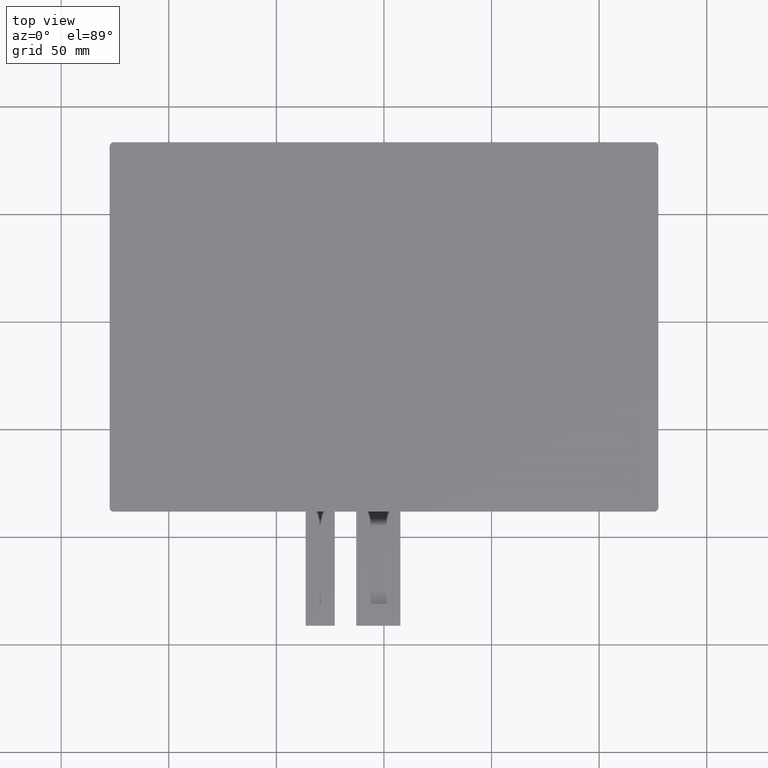
[diagram: clean part render]
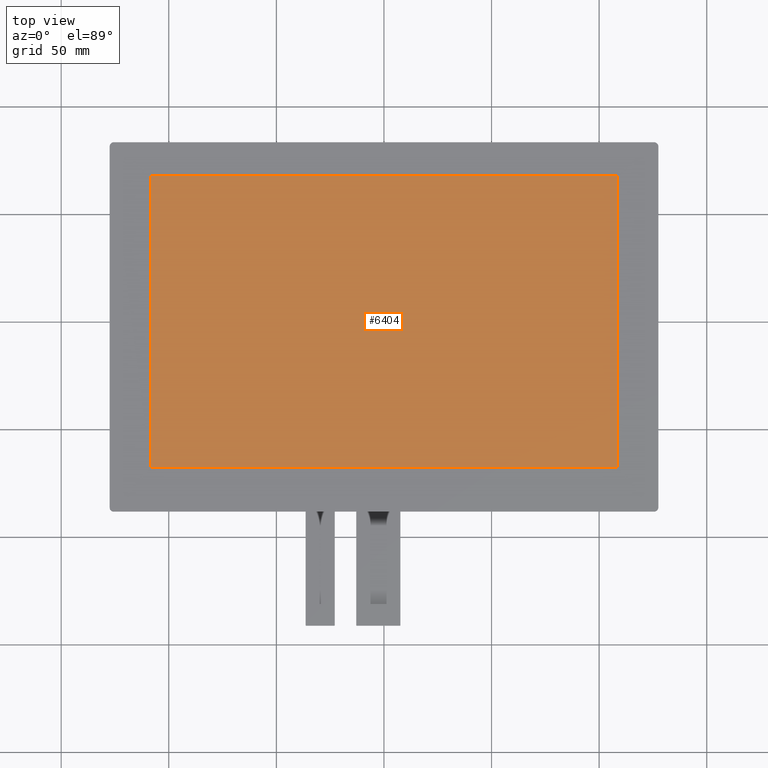
[diagram: same view with one face highlighted and labeled with its STEP entity id]
A machine part, top view. The second image highlights one B-rep face of the part: STEP entity #6404.
In plain terms, the highlighted planar face has unit normal (0, 0, 1).
Its self-contained STEP definition (entity closure, byte-faithful):
#350=FACE_OUTER_BOUND('',#660,.T.);
#660=EDGE_LOOP('',(#5726,#5727,#5728,#5729));
#678=LINE('',#8320,#1566);
#679=LINE('',#8322,#1567);
#680=LINE('',#8324,#1568);
#681=LINE('',#8325,#1569);
#1566=VECTOR('',#6778,10.);
#1567=VECTOR('',#6779,10.);
#1568=VECTOR('',#6780,10.);
#1569=VECTOR('',#6781,10.);
#2474=VERTEX_POINT('',#8318);
#2475=VERTEX_POINT('',#8319);
#2476=VERTEX_POINT('',#8321);
#2477=VERTEX_POINT('',#8323);
#3078=EDGE_CURVE('',#2474,#2475,#678,.T.);
#3079=EDGE_CURVE('',#2476,#2474,#679,.T.);
#3080=EDGE_CURVE('',#2477,#2476,#680,.T.);
#3081=EDGE_CURVE('',#2475,#2477,#681,.T.);
#5726=ORIENTED_EDGE('',*,*,#3078,.T.);
#5727=ORIENTED_EDGE('',*,*,#3081,.T.);
#5728=ORIENTED_EDGE('',*,*,#3080,.T.);
#5729=ORIENTED_EDGE('',*,*,#3079,.T.);
#6070=PLANE('',#6750);
#6404=ADVANCED_FACE('',(#350),#6070,.T.);
#6750=AXIS2_PLACEMENT_3D('',#10073,#8256,#8257);
#6778=DIRECTION('',(0.,1.,0.));
#6779=DIRECTION('',(1.,0.,0.));
#6780=DIRECTION('',(0.,-1.,0.));
#6781=DIRECTION('',(-1.,0.,0.));
#8256=DIRECTION('center_axis',(0.,0.,1.));
#8257=DIRECTION('ref_axis',(1.,0.,0.));
#8318=CARTESIAN_POINT('',(108.48,-67.8,1.1));
#8319=CARTESIAN_POINT('',(108.48,67.8,1.1));
#8320=CARTESIAN_POINT('',(108.48,-35.075,1.1));
#8321=CARTESIAN_POINT('',(-108.48,-67.8,1.1));
#8322=CARTESIAN_POINT('',(-54.23,-67.8,1.1));
#8323=CARTESIAN_POINT('',(-108.48,67.8,1.1));
#8324=CARTESIAN_POINT('',(-108.48,32.725,1.1));
#8325=CARTESIAN_POINT('',(54.25,67.8,1.1));
#10073=CARTESIAN_POINT('Origin',(0.0199999999999712,-2.34999999999998,1.1));